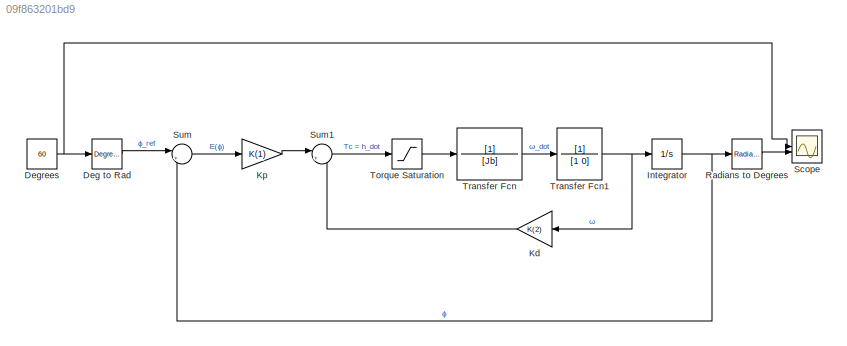
MODEL slx_09f863201bd9
KIND model
CONFIG AbsTol = auto
CONFIG EnableMultiTasking = off
CONFIG FixedStep = auto
CONFIG MaxStep = auto
CONFIG MinStep = auto
CONFIG RelTol = 1e-3
CONFIG SampleTimeConstraint = Unconstrained
CONFIG SolverName = VariableStepAuto
CONFIG StartTime = 0.0
CONFIG StopTime = 10.0
WORKSPACE source: mxarray member
WORKSPACE TorqueSat = 0.0675
BLOCK [Reference] Deg to Rad  REF=simulink_extras/Transformations/Degrees to
Radians
  SourceBlock = simulink_extras/Transformations/Degrees to\nRadians
  SourceType = DegreesToRadians
BLOCK [Constant] Degrees
  Value = 60
BLOCK [Integrator] Integrator
BLOCK [Gain] Kd
  Gain = K(2)
BLOCK [Gain] Kp
  Gain = K(1)
BLOCK [Reference] Radians to Degrees  REF=simulink_extras/Transformations/Radians
to Degrees
  SourceBlock = simulink_extras/Transformations/Radians\nto Degrees
  SourceType = RadiansToDegrees
BLOCK [Scope] Scope
  Floating = off
  NumInputPorts = 2
  ScopeSpecificationString = Simulink.scopes.TimeScopeBlockCfg('CurrentConfiguration', extmgr.ConfigurationSet(extmgr.Configuration('Core','General UI',true),extmgr.Configuration('Core','Source UI',true),extmgr.Configuration('Sources','WiredSimulink',true),extmgr.Configuration('Visuals','Time Domain',true,'SerializedDisplays',{struct('MinYLimReal','-7.50039','MaxYLimReal','67.50351','YLabelReal','','MinYLimMag','0.00000','Max...<+1439ch>
BLOCK [Sum] Sum
  Inputs = |+-
BLOCK [Sum] Sum1
  Inputs = |+-
BLOCK [Saturate] Torque Saturation
  LowerLimit = -Kt
  UpperLimit = Kt
BLOCK [TransferFcn] Transfer Fcn
  Denominator = [Jb]
BLOCK [TransferFcn] Transfer Fcn1
  Denominator = [1 0]
LINE Deg to Rad:1 -> Sum:1
NET Degrees:1 -> Deg to Rad:1, Scope:1
NET Integrator:1 -> Radians to Degrees:1, Sum:2
LINE Kd:1 -> Sum1:2
LINE Kp:1 -> Sum1:1
LINE Radians to Degrees:1 -> Scope:2
LINE Sum1:1 -> Torque Saturation:1
LINE Sum:1 -> Kp:1
LINE Torque Saturation:1 -> Transfer Fcn:1
NET Transfer Fcn1:1 -> Integrator:1, Kd:1
LINE Transfer Fcn:1 -> Transfer Fcn1:1
note: NET lines group one-source signal fan-out (src -> all destinations, sorted); 1:1 wires keep LINE
